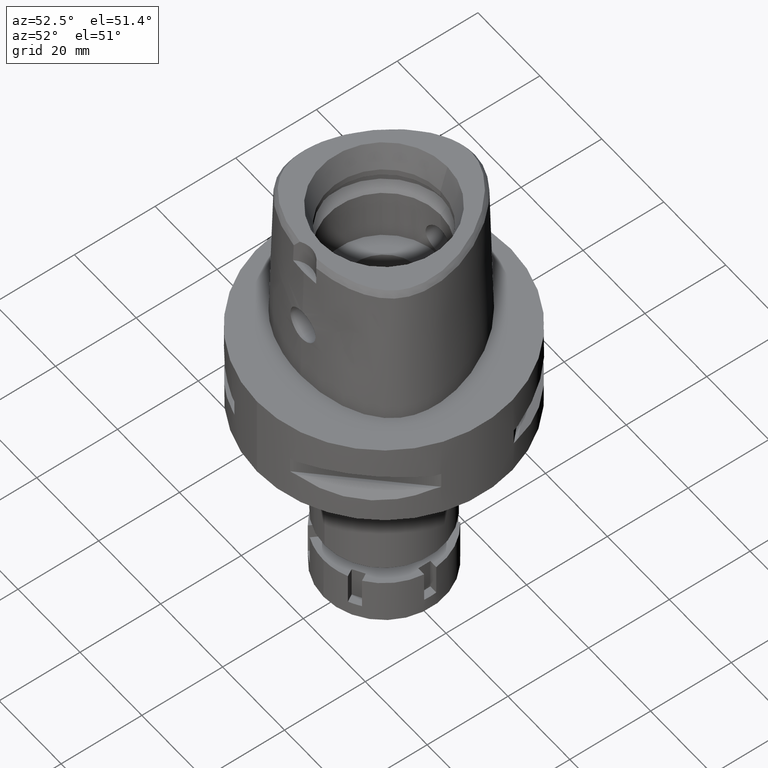
[diagram: clean part render]
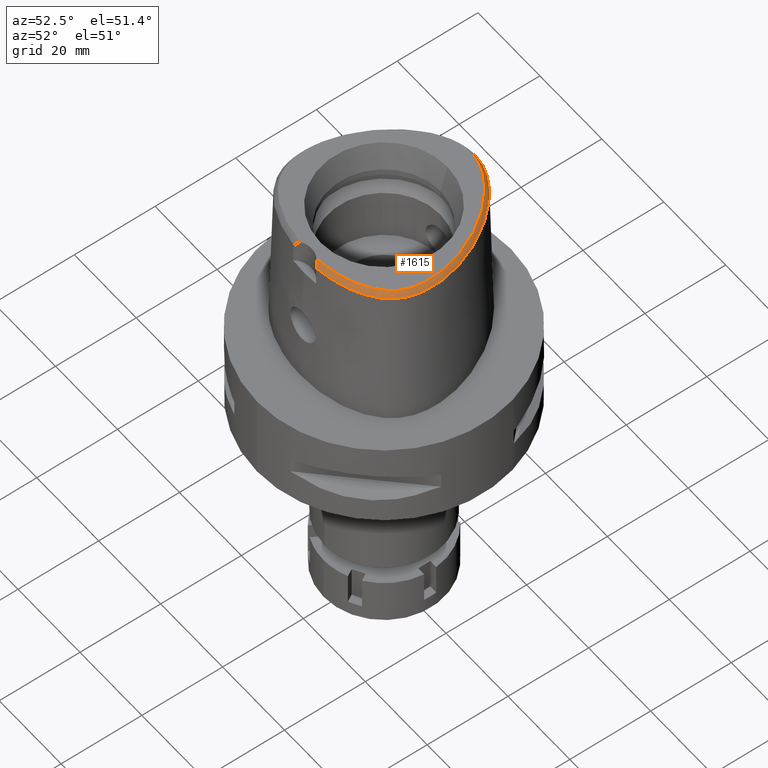
[diagram: same view with one face highlighted and labeled with its STEP entity id]
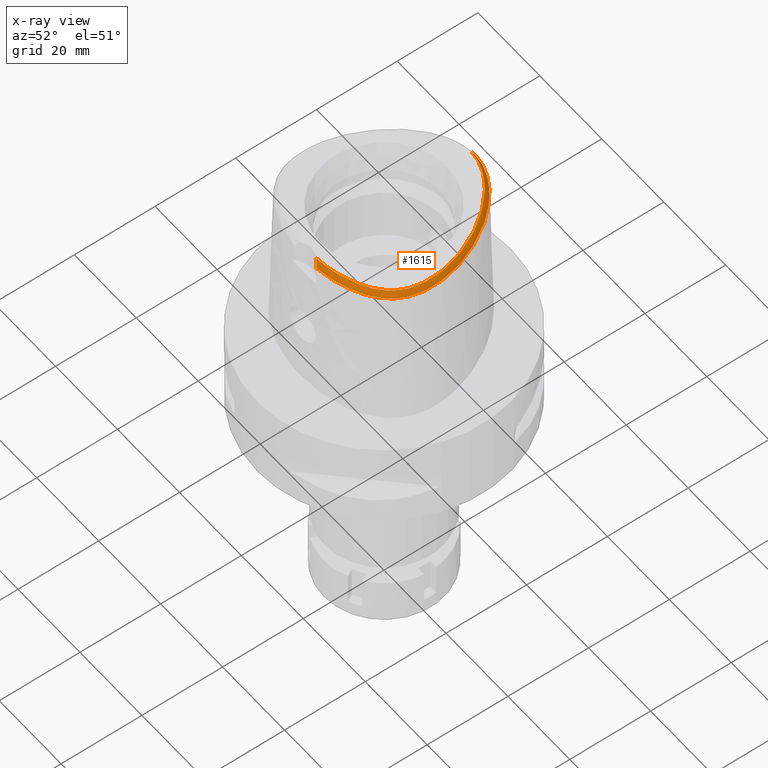
[diagram: x-ray of the same camera — body ghosted, the highlighted face saturated]
A machine part, auxiliary view. The second image highlights one B-rep face of the part: STEP entity #1615.
The next image is the same camera in x-ray: the body ghosted, the highlighted face saturated — about 0% of this face is hidden behind the body in this view.
In plain terms, the highlighted face is a freeform B-spline surface patch.
Its self-contained STEP definition (entity closure, byte-faithful):
#9 = CARTESIAN_POINT ( 'NONE',  ( 7.801698002855999903, 19.31334623104000059, 37.55524310702000435 ) ) ;
#13 = CARTESIAN_POINT ( 'NONE',  ( 19.94150023627672752, 0.2261566111945942925, 37.99999999999957367 ) ) ;
#34 = CARTESIAN_POINT ( 'NONE',  ( 3.666378257587000089, 21.71825640634000010, 36.96658037082000448 ) ) ;
#43 = CARTESIAN_POINT ( 'NONE',  ( 16.93855157777929321, -13.22377441789303276, 37.99999999999421618 ) ) ;
#54 = CARTESIAN_POINT ( 'NONE',  ( 20.36831626393000150, -8.720400245107001069, 36.96658006665999352 ) ) ;
#73 = CARTESIAN_POINT ( 'NONE',  ( 16.09765529146957519, 9.909410920133010947, 37.99999999999318590 ) ) ;
#84 = CARTESIAN_POINT ( 'NONE',  ( 20.97471890655000237, -5.315891943738000336, 36.96658071245000343 ) ) ;
#102 = CARTESIAN_POINT ( 'NONE',  ( 20.38292172607752661, -3.276278498261558703, 37.99999999999219824 ) ) ;
#110 = CARTESIAN_POINT ( 'NONE',  ( 14.83671133498999950, 12.91029954314000072, 36.96658053822999790 ) ) ;
#126 = CARTESIAN_POINT ( 'NONE',  ( 20.09619608769149934, -10.23243839430103463, 36.52186680739937685 ) ) ;
#136 = CARTESIAN_POINT ( 'NONE',  ( 16.32357122635000124, 10.04463811157000031, 37.55524310103000829 ) ) ;
#165 = CARTESIAN_POINT ( 'NONE',  ( 21.34232043503999776, -3.233006384124000210, 36.37791703637000040 ) ) ;
#179 = CARTESIAN_POINT ( 'NONE',  ( 4.752906417306999920, -18.82661743818000133, 37.55524310192000570 ) ) ;
#190 = CARTESIAN_POINT ( 'NONE',  ( 12.63741399752000127, 15.06682391710000068, 37.55524333337999821 ) ) ;
#205 = CARTESIAN_POINT ( 'NONE',  ( 11.55631002590999934, -17.37146342691999834, 36.96657991700999446 ) ) ;
#237 = CARTESIAN_POINT ( 'NONE',  ( 3.520338765888999966, -18.62276927085999745, 38.14390603046999928 ) ) ;
#239 = VERTEX_POINT ( 'NONE', #1969 ) ;
#265 = FACE_OUTER_BOUND ( 'NONE', #377, .T. ) ;
#274 = CARTESIAN_POINT ( 'NONE',  ( 3.771297800523000010, 22.05064991511000017, 36.37791752201999884 ) ) ;
#290 = CARTESIAN_POINT ( 'NONE',  ( 16.76715658088000183, -14.22166181368000082, 36.96657996121999901 ) ) ;
#297 = CARTESIAN_POINT ( 'NONE',  ( 0.02371701229406000117, 22.30536050430000117, 36.96658029041999782 ) ) ;
#311 = CARTESIAN_POINT ( 'NONE',  ( 16.09777605482999974, -14.77812208666000160, 36.96658017062000567 ) ) ;
#326 = CARTESIAN_POINT ( 'NONE',  ( -0.6386497150734999906, 22.28134143924999933, 36.96657976104999932 ) ) ;
#341 = CARTESIAN_POINT ( 'NONE',  ( 14.71672907411000075, -16.16104494572000050, 36.37791756425000500 ) ) ;
#350 = CARTESIAN_POINT ( 'NONE',  ( 5.166974690248000712, 20.77428923412999850, 37.55524323134999776 ) ) ;
#365 = CARTESIAN_POINT ( 'NONE',  ( 19.84750713672000089, -10.91267173702000015, 36.37791678021999786 ) ) ;
#377 = EDGE_LOOP ( 'NONE', ( #1587, #4520, #1749, #2858 ) ) ;
#387 = CARTESIAN_POINT ( 'NONE',  ( 17.64933743684999712, -12.85715827263999955, 37.55524311151000205 ) ) ;
#400 = CARTESIAN_POINT ( 'NONE',  ( 0.6513209347956055995, 21.67370899611767499, 38.00000000000257927 ) ) ;
#424 = CARTESIAN_POINT ( 'NONE',  ( 16.36283630828623359, -13.76236604534801344, 37.99999999999828049 ) ) ;
#443 = CARTESIAN_POINT ( 'NONE',  ( 4.349446923920999630, 21.11225867646000154, 37.55524308841000192 ) ) ;
#448 = CARTESIAN_POINT ( 'NONE',  ( 10.48999540690944343, 16.86597469870150690, 37.99999999999842260 ) ) ;
#476 = CARTESIAN_POINT ( 'NONE',  ( 2.376843874103949261, 22.39422497744250506, 36.52186680739937685 ) ) ;
#487 = CARTESIAN_POINT ( 'NONE',  ( 20.62690666197999789, -5.293387998809999218, 37.55524336665999385 ) ) ;
#509 = CARTESIAN_POINT ( 'NONE',  ( 12.37622418510252764, -16.33871033285808849, 37.99999999999675282 ) ) ;
#515 = CARTESIAN_POINT ( 'NONE',  ( 18.15599187664000169, 7.363121477870000042, 36.96658073543000000 ) ) ;
#534 = CARTESIAN_POINT ( 'NONE',  ( 19.26272899268314731, 2.870227893749603520, 37.99999999999705835 ) ) ;
#542 = CARTESIAN_POINT ( 'NONE',  ( 21.36097493632999900, -4.318188675165998802, 36.37791723528000176 ) ) ;
#554 = CARTESIAN_POINT ( 'NONE',  ( 3.593747101923999931, -19.31573022036000253, 36.96658064345999861 ) ) ;
#571 = CARTESIAN_POINT ( 'NONE',  ( 15.11746531688000061, 13.11675050028000022, 36.37791778478000282 ) ) ;
#588 = CARTESIAN_POINT ( 'NONE',  ( 2.636407847501999857, -18.70010190962999985, 38.14390602040000289 ) ) ;
#596 = CARTESIAN_POINT ( 'NONE',  ( -1.479175875384000228E-11, 22.56201468012000078, 36.52186680743999858 ) ) ;
#603 = CARTESIAN_POINT ( 'NONE',  ( 16.81091519447000238, 8.478458599486000224, 38.14390607450000203 ) ) ;
#620 = CARTESIAN_POINT ( 'NONE',  ( 11.29098262437999978, -16.72690921951999954, 38.14390613161999966 ) ) ;
#627 = CARTESIAN_POINT ( 'NONE',  ( 18.90964962507782587, -12.28759713487286298, 36.52186680739937685 ) ) ;
#634 = CARTESIAN_POINT ( 'NONE',  ( 11.90112515808000104, 16.35712680165999799, 36.96658249310000599 ) ) ;
#647 = CARTESIAN_POINT ( 'NONE',  ( 8.912659947084000223, -17.56629835404999795, 38.14390574024000102 ) ) ;
#679 = CARTESIAN_POINT ( 'NONE',  ( 2.088261414990999931, -19.08628028756999839, 37.55524333974999962 ) ) ;
#688 = CARTESIAN_POINT ( 'NONE',  ( 5.855324703515999651, 20.05619330945000200, 38.14390605247999844 ) ) ;
#707 = CARTESIAN_POINT ( 'NONE',  ( 20.75341542433000086, -7.131014075746000103, 36.96657996687000036 ) ) ;
#709 = B_SPLINE_CURVE_WITH_KNOTS ( 'NONE', 3,
 ( #4712, #939, #2196, #3885, #1000, #5209 ),
 .UNSPECIFIED., .F., .F.,
 ( 4, 1, 1, 4 ),
 ( 0.0000000000000000000, 0.3333333333333000081, 0.6666666666667000474, 1.000000000000000000 ),
 .UNSPECIFIED. ) ;
#718 = CARTESIAN_POINT ( 'NONE',  ( 2.886157767456999590, 21.93872577574000360, 36.96658045339000154 ) ) ;
#731 = CARTESIAN_POINT ( 'NONE',  ( 17.90911897010999709, -13.08956941439000055, 36.96658011960000323 ) ) ;
#741 = CARTESIAN_POINT ( 'NONE',  ( -0.4341140771878000404, 22.64110720476000083, 36.37791705949000232 ) ) ;
#756 = CARTESIAN_POINT ( 'NONE',  ( 20.16404385799000210, -10.25891233043000028, 36.37791725924000019 ) ) ;
#767 = CARTESIAN_POINT ( 'NONE',  ( 5.452137112547999820, 21.41038348175999673, 36.37791756477000149 ) ) ;
#784 = CARTESIAN_POINT ( 'NONE',  ( 18.92066629922999610, -10.42833253256000070, 38.14390613423999810 ) ) ;
#813 = CARTESIAN_POINT ( 'NONE',  ( 20.03503703266000002, -8.618298166748999733, 37.55524308871999750 ) ) ;
#848 = CARTESIAN_POINT ( 'NONE',  ( 2.845098933833551946, -18.76733062686122011, 37.99999999999900524 ) ) ;
#871 = CARTESIAN_POINT ( 'NONE',  ( 0.6897469307455998955, 22.28445470859000110, 36.96657992981000262 ) ) ;
#905 = CARTESIAN_POINT ( 'NONE',  ( 0.7901461619530943947, 22.56201467849317410, 36.52186680739937685 ) ) ;
#913 = CARTESIAN_POINT ( 'NONE',  ( 15.46589690768999859, 11.40337226012000116, 37.55524336871000202 ) ) ;
#931 = CARTESIAN_POINT ( 'NONE',  ( 13.40430406168420951, 13.76274261013123912, 37.99999999999948130 ) ) ;
#939 = CARTESIAN_POINT ( 'NONE',  ( 3.538185661162999818, -19.46414103320000066, 36.71708066496000100 ) ) ;
#942 = CARTESIAN_POINT ( 'NONE',  ( 15.75612637152999973, 11.59627258669000049, 36.96658071723999939 ) ) ;
#967 = CARTESIAN_POINT ( 'NONE',  ( 3.529311563348807024, -18.70747079909795829, 38.00000000000133582 ) ) ;
#975 = CARTESIAN_POINT ( 'NONE',  ( 18.80662003324999887, 5.909236943728999769, 36.96658029366000164 ) ) ;
#1000 = CARTESIAN_POINT ( 'NONE',  ( 2.793200680326000107, -18.85086725872000102, 37.86628574653000356 ) ) ;
#1002 = CARTESIAN_POINT ( 'NONE',  ( 20.64597806672999880, -3.264413771020000077, 37.55524308646999998 ) ) ;
#1015 = CARTESIAN_POINT ( 'NONE',  ( 3.630451269942000181, -19.66221069510000063, 36.37791794996000050 ) ) ;
#1032 = CARTESIAN_POINT ( 'NONE',  ( 17.52683439366999707, 7.063227167177000609, 38.14390601765999378 ) ) ;
#1048 = CARTESIAN_POINT ( 'NONE',  ( 10.49698533052000116, -18.14989199300999800, 36.37791962889000530 ) ) ;
#1063 = CARTESIAN_POINT ( 'NONE',  ( 13.60872940890000038, 13.92868398933000051, 37.55524295656999811 ) ) ;
#1132 = CARTESIAN_POINT ( 'NONE',  ( 15.15647042500000019, -15.04017115717000053, 37.55524335874000030 ) ) ;
#1140 = CARTESIAN_POINT ( 'NONE',  ( 10.43243981078999916, 16.80315946532000382, 38.14390575550999785 ) ) ;
#1141 = CARTESIAN_POINT ( 'NONE',  ( 3.482188079160005501, 21.13472718027242436, 37.99999999999629097 ) ) ;
#1154 = CARTESIAN_POINT ( 'NONE',  ( 13.79633483645999803, -16.69357713235000062, 36.37791700502999959 ) ) ;
#1161 = CARTESIAN_POINT ( 'NONE',  ( -0.4077991261730000150, 21.94477004746999782, 37.55524309281000228 ) ) ;
#1174 = CARTESIAN_POINT ( 'NONE',  ( 19.84567822821999883, -10.11695991228000224, 36.96658020341000395 ) ) ;
#1185 = CARTESIAN_POINT ( 'NONE',  ( 6.175722474502999937, 20.67527161806999914, 36.96658048537000241 ) ) ;
#1202 = CARTESIAN_POINT ( 'NONE',  ( 18.66518255216000099, -12.73138998213000050, 36.37791767433999723 ) ) ;
#1215 = CARTESIAN_POINT ( 'NONE',  ( 1.325020189552857497, 21.61081414409553147, 37.99999999999233324 ) ) ;
#1227 = CARTESIAN_POINT ( 'NONE',  ( 18.53512528929999803, -11.73623064585999920, 37.55524301638000395 ) ) ;
#1259 = CARTESIAN_POINT ( 'NONE',  ( 13.33890749495663108, -15.84912955619333097, 37.99999999999040057 ) ) ;
#1278 = CARTESIAN_POINT ( 'NONE',  ( 10.13690234144999991, 18.44517858651999731, 36.37791859338999956 ) ) ;
#1286 = CARTESIAN_POINT ( 'NONE',  ( 7.655962789343619512, 19.09402979099361986, 37.99999999999932498 ) ) ;
#1307 = CARTESIAN_POINT ( 'NONE',  ( 1.444542054924000007, 22.56386789761000244, 36.37791648778999587 ) ) ;
#1315 = CARTESIAN_POINT ( 'NONE',  ( -1.479175875384000228E-11, 22.56201468012000078, 36.52186680743999858 ) ) ;
#1322 = CARTESIAN_POINT ( 'NONE',  ( 21.01245723557999767, -4.314975611754999107, 36.96658018814000002 ) ) ;
#1338 = CARTESIAN_POINT ( 'NONE',  ( 7.108589361577370980, 20.52412316395115610, 36.52186680739937685 ) ) ;
#1346 = CARTESIAN_POINT ( 'NONE',  ( 20.99414925089000050, -3.248710077571999921, 36.96658006141999664 ) ) ;
#1370 = CARTESIAN_POINT ( 'NONE',  ( 17.27359236348664595, 9.972912859139471564, 36.52186680739937685 ) ) ;
#1381 = CARTESIAN_POINT ( 'NONE',  ( 19.18135649123999897, 2.844996931117999672, 38.14390592584999951 ) ) ;
#1400 = CARTESIAN_POINT ( 'NONE',  ( 16.39211273426271731, -14.95758104716204606, 36.52186680739937685 ) ) ;
#1409 = CARTESIAN_POINT ( 'NONE',  ( 20.56683407424999999, -2.149534130283000444, 37.55524297560000235 ) ) ;
#1428 = CARTESIAN_POINT ( 'NONE',  ( 4.467522181836567796, -19.48130276147530537, 36.52186680739937685 ) ) ;
#1436 = CARTESIAN_POINT ( 'NONE',  ( 20.42017408908999698, -0.9682881612971999674, 37.55524323640999995 ) ) ;
#1451 = CARTESIAN_POINT ( 'NONE',  ( 9.111132730794000878, -18.23444843466000265, 36.96658272760999608 ) ) ;
#1456 = CARTESIAN_POINT ( 'NONE',  ( 7.300578979383509193, -19.07170738131085841, 36.52186680739937685 ) ) ;
#1468 = CARTESIAN_POINT ( 'NONE',  ( 12.89703909740000043, 15.29929730045000014, 36.96658063513000059 ) ) ;
#1483 = CARTESIAN_POINT ( 'NONE',  ( 2.317503385888000089, -19.42116977889999774, 36.96658068328999747 ) ) ;
#1514 = CARTESIAN_POINT ( 'NONE',  ( 10.26511113853000090, -17.49257508748999967, 37.55524379730999840 ) ) ;
#1535 = CARTESIAN_POINT ( 'NONE',  ( 2.293952720325999728, -19.07360247599999781, 37.55524335409999992 ) ) ;
#1544 = CARTESIAN_POINT ( 'NONE',  ( 9.151801237275998702, 19.21681056661000042, 36.37791654698000343 ) ) ;
#1564 = CARTESIAN_POINT ( 'NONE',  ( 15.66829049108999961, -14.22904134146000033, 38.14390609630999762 ) ) ;
#1574 = CARTESIAN_POINT ( 'NONE',  ( 7.247958680112000174, 20.48140100142999742, 36.37791707472000269 ) ) ;
#1587 = ORIENTED_EDGE ( 'NONE', *, *, #2825, .F. ) ;
#1590 = CARTESIAN_POINT ( 'NONE',  ( 19.10766131086999664, -12.13401992807999896, 36.37791678074999879 ) ) ;
#1600 = CARTESIAN_POINT ( 'NONE',  ( 4.473578287533000797, 21.43795797084000299, 36.96658006594000057 ) ) ;
#1614 = CARTESIAN_POINT ( 'NONE',  ( 17.84480187205999968, -12.08291092895000141, 38.14390605491999509 ) ) ;
#1615 = ADVANCED_FACE ( 'NONE', ( #265 ), #4681, .F. ) ;
#1637 = CARTESIAN_POINT ( 'NONE',  ( 20.57941429779000231, -7.951869817099000315, 36.96658000130999966 ) ) ;
#1672 = CARTESIAN_POINT ( 'NONE',  ( 20.30478359881946560, -2.175347700950746699, 37.99999999999749889 ) ) ;
#1690 = CARTESIAN_POINT ( 'NONE',  ( 8.187476971243999202, 19.89390372262000284, 36.37791711131999506 ) ) ;
#1695 = CARTESIAN_POINT ( 'NONE',  ( 17.60373714028083825, 7.099883643193164673, 37.99999999999874234 ) ) ;
#1713 = CARTESIAN_POINT ( 'NONE',  ( 2.716152754389999924, 21.26264062318999848, 38.14390605692999969 ) ) ;
#1720 = VECTOR ( 'NONE', #2311, 1000.000000000000227 ) ;
#1724 = CARTESIAN_POINT ( 'NONE',  ( 9.524842839488357527, 17.70516372195135091, 38.00000000000355982 ) ) ;
#1733 = CARTESIAN_POINT ( 'NONE',  ( 16.02455764480000155, 9.865656638413000223, 38.14390610679999583 ) ) ;
#1749 = ORIENTED_EDGE ( 'NONE', *, *, #2810, .T. ) ;
#1752 = CARTESIAN_POINT ( 'NONE',  ( 18.24247239569877976, 5.672548708071968981, 37.99999999999990763 ) ) ;
#1760 = CARTESIAN_POINT ( 'NONE',  ( 21.32253115111000241, -5.338395888666000566, 36.37791805825000324 ) ) ;
#1779 = CARTESIAN_POINT ( 'NONE',  ( 20.36412151360895351, -5.276385427454140853, 37.99999999999872102 ) ) ;
#1786 = CARTESIAN_POINT ( 'NONE',  ( 18.48526678420000025, 5.774413134362000655, 37.55524318642000736 ) ) ;
#1808 = CARTESIAN_POINT ( 'NONE',  ( 14.22011350746286062, -16.41829354688557530, 36.52186680739937685 ) ) ;
#1819 = CARTESIAN_POINT ( 'NONE',  ( 21.26051379407000397, -2.081202445559999781, 36.37791663201999626 ) ) ;
#1835 = CARTESIAN_POINT ( 'NONE',  ( 10.38104823452000147, -17.82123354024999884, 36.96658171309999830 ) ) ;
#1850 = CARTESIAN_POINT ( 'NONE',  ( 20.88664216568000143, -6.253788544013000106, 36.96658037486999859 ) ) ;
#1874 = CARTESIAN_POINT ( 'NONE',  ( 13.15666419727999958, 15.53177068379999959, 36.37791793688000297 ) ) ;
#1888 = CARTESIAN_POINT ( 'NONE',  ( 11.68897372666999956, -17.69374053062000129, 36.37791680969999675 ) ) ;
#1919 = CARTESIAN_POINT ( 'NONE',  ( 12.63846265627999976, -16.89150352318999992, 36.96657996810999691 ) ) ;
#1926 = CARTESIAN_POINT ( 'NONE',  ( 17.90324024157311911, -13.53935104435961101, 36.52186680739937685 ) ) ;
#1948 = CARTESIAN_POINT ( 'NONE',  ( 9.210369122650000406, -18.56852347496000277, 36.37792122130000649 ) ) ;
#1957 = CARTESIAN_POINT ( 'NONE',  ( 7.608808518661999365, 19.02306748524999591, 38.14390610486999833 ) ) ;
#1969 = CARTESIAN_POINT ( 'NONE',  ( 2.682287482605000051, -18.78036330228999873, 38.00000000000000000 ) ) ;
#1971 = CARTESIAN_POINT ( 'NONE',  ( 17.36928981519000104, -13.65840856075000076, 36.96658002605000348 ) ) ;
#1978 = CARTESIAN_POINT ( 'NONE',  ( 0.02437359039957999809, 22.65392711312000174, 36.37791739581999906 ) ) ;
#1998 = CARTESIAN_POINT ( 'NONE',  ( 18.16890050337000062, -13.32198055615000065, 36.37791712768999730 ) ) ;
#2006 = CARTESIAN_POINT ( 'NONE',  ( 8.735945417806000535, 18.65741905980999960, 37.55524295228000398 ) ) ;
#2021 = CARTESIAN_POINT ( 'NONE',  ( 16.53684517902999929, -13.96003493163000009, 37.55524304334999641 ) ) ;
#2029 = CARTESIAN_POINT ( 'NONE',  ( 1.314416584636999952, 21.52626220512999922, 38.14390616018000202 ) ) ;
#2043 = CARTESIAN_POINT ( 'NONE',  ( 19.90186731433000489, -7.787824919521000311, 38.14390611988999780 ) ) ;
#2072 = CARTESIAN_POINT ( 'NONE',  ( 20.91818778952000102, -8.033892265887999429, 36.37791694202000059 ) ) ;
#2108 = CARTESIAN_POINT ( 'NONE',  ( 20.27923816685981251, -6.179850483268406691, 37.99999999999874944 ) ) ;
#2128 = CARTESIAN_POINT ( 'NONE',  ( 9.470542840707999233, 17.63951192484000075, 38.14390597338999811 ) ) ;
#2133 = CARTESIAN_POINT ( 'NONE',  ( 19.78323211893007283, -8.541156231035980539, 37.99999999999089084 ) ) ;
#2172 = CARTESIAN_POINT ( 'NONE',  ( 20.23644778447999926, 1.674257468848000086, 36.96658277795000203 ) ) ;
#2190 = CARTESIAN_POINT ( 'NONE',  ( 19.64387775268451719, 1.522048414458460508, 37.99999999999386802 ) ) ;
#2196 = CARTESIAN_POINT ( 'NONE',  ( 3.333185480263000322, -19.26518368270999915, 37.08692409105999843 ) ) ;
#2198 = CARTESIAN_POINT ( 'NONE',  ( 16.04635583537999821, 11.78917291325999983, 36.37791806576000653 ) ) ;
#2216 = CARTESIAN_POINT ( 'NONE',  ( 11.46587147800001105, 15.92717600803375610, 37.99999999999735678 ) ) ;
#2225 = CARTESIAN_POINT ( 'NONE',  ( 17.42519684434000027, 8.807749168099999082, 36.96658032724000265 ) ) ;
#2238 = CARTESIAN_POINT ( 'NONE',  ( 6.180367822565000502, -18.23308212698999853, 38.14390612298999628 ) ) ;
#2260 = CARTESIAN_POINT ( 'NONE',  ( 20.54064896193000322, -6.211671490838999610, 37.55524322136999871 ) ) ;
#2274 = CARTESIAN_POINT ( 'NONE',  ( 7.669231052224000145, -18.26408014319999751, 37.55524390731000040 ) ) ;
#2291 = CARTESIAN_POINT ( 'NONE',  ( 17.11805601941000177, 8.643103883792999653, 37.55524320086999523 ) ) ;
#2305 = CARTESIAN_POINT ( 'NONE',  ( 11.42364632513999823, -17.04918632321999894, 37.55524302431000194 ) ) ;
#2311 = DIRECTION ( 'NONE',  ( -1.159647928755014891E-11, -0.5092834681090075977, 0.8605988316927122295 ) ) ;
#2316 = CARTESIAN_POINT ( 'NONE',  ( 12.14905703786000046, 16.60203801863000095, 36.37792085319999558 ) ) ;
#2330 = VERTEX_POINT ( 'NONE', #5067 ) ;
#2332 = CARTESIAN_POINT ( 'NONE',  ( 12.33970687276000078, -16.26173260528999975, 38.14390612450999640 ) ) ;
#2364 = CARTESIAN_POINT ( 'NONE',  ( 2.663788824065000060, -19.04739795081999887, 37.55524336807999930 ) ) ;
#2368 = CARTESIAN_POINT ( 'NONE',  ( 21.14970177531298745, -6.717195943319144824, 36.52186680739937685 ) ) ;
#2372 = CARTESIAN_POINT ( 'NONE',  ( 7.994587487050000441, 19.60362497682999816, 36.96658010916999615 ) ) ;
#2389 = CARTESIAN_POINT ( 'NONE',  ( 21.09641232389000010, -7.193009693891000644, 36.37791688797000234 ) ) ;
#2396 = EDGE_CURVE ( 'NONE', #4781, #239, #709, .T. ) ;
#2397 = CARTESIAN_POINT ( 'NONE',  ( 0.02240385608303000278, 21.60822728664999914, 38.14390607962999269 ) ) ;
#2411 = CARTESIAN_POINT ( 'NONE',  ( 16.31251883671000158, -15.05266245926000046, 36.37791720776999682 ) ) ;
#2419 = CARTESIAN_POINT ( 'NONE',  ( 2.971160273989999823, 22.27676835201999950, 36.37791765160999802 ) ) ;
#2438 = CARTESIAN_POINT ( 'NONE',  ( 20.24064080606000005, -7.869847368309999425, 37.55524306059999873 ) ) ;
#2446 = CARTESIAN_POINT ( 'NONE',  ( -0.5994056185823001259, 21.58577258329999893, 38.14390615333999790 ) ) ;
#2463 = CARTESIAN_POINT ( 'NONE',  ( 14.53422131294999886, -15.86411481486999975, 36.96658039772999871 ) ) ;
#2488 = CARTESIAN_POINT ( 'NONE',  ( 20.06742162519000416, -7.007022839456999996, 38.14390612468999819 ) ) ;
#2499 = CARTESIAN_POINT ( 'NONE',  ( 2.736932690727253092, 21.34527940057069628, 37.99999999999355538 ) ) ;
#2529 = CARTESIAN_POINT ( 'NONE',  ( 18.79595068776344746, 4.257753965101831461, 37.99999999999661071 ) ) ;
#2550 = CARTESIAN_POINT ( 'NONE',  ( 6.335921359996000035, 20.98481077239000214, 36.37791770180999151 ) ) ;
#2556 = CARTESIAN_POINT ( 'NONE',  ( 16.88599964843636414, 8.518708218769839746, 37.99999999999647571 ) ) ;
#2580 = CARTESIAN_POINT ( 'NONE',  ( 8.936919536467794245, -17.64796721715127603, 37.99999999999494094 ) ) ;
#2589 = CARTESIAN_POINT ( 'NONE',  ( 20.07559210249000259, -1.020480503251999904, 38.14390606301000020 ) ) ;
#2612 = CARTESIAN_POINT ( 'NONE',  ( 6.760281394351118855, 19.65404668909436836, 37.99999999999286615 ) ) ;
#2619 = CARTESIAN_POINT ( 'NONE',  ( 20.27909441741999785, -5.270884053882999964, 38.14390602086000115 ) ) ;
#2640 = CARTESIAN_POINT ( 'NONE',  ( 19.88562079788676229, 4.345879946636430624, 36.52186680739937685 ) ) ;
#2646 = CARTESIAN_POINT ( 'NONE',  ( 20.76475607569000204, -0.9160958193420000173, 36.96658040980999971 ) ) ;
#2672 = CARTESIAN_POINT ( 'NONE',  ( 18.71590074100999956, 4.228600144935000138, 38.14390616269999867 ) ) ;
#2683 = CARTESIAN_POINT ( 'NONE',  ( 4.802315409589999362, -19.17158814024000080, 36.96658009732999517 ) ) ;
#2693 = CARTESIAN_POINT ( 'NONE',  ( 19.55745538001455586, -11.29150212657858887, 36.52186680739937685 ) ) ;
#2702 = CARTESIAN_POINT ( 'NONE',  ( 17.84141313516000338, 7.213174322522999837, 37.55524337655000267 ) ) ;
#2739 = CARTESIAN_POINT ( 'NONE',  ( 13.87929888095000130, 14.14831757184000161, 36.96657975959000453 ) ) ;
#2760 = CARTESIAN_POINT ( 'NONE',  ( 21.32871516739957585, -4.105831245033910726, 36.52186680739937685 ) ) ;
#2809 = CARTESIAN_POINT ( 'NONE',  ( 16.30653377718000030, -13.69840804958000113, 38.14390612547000359 ) ) ;
#2810 = EDGE_CURVE ( 'NONE', #2330, #239, #3331, .T. ) ;
#2818 = CARTESIAN_POINT ( 'NONE',  ( 9.914782507871001016, 18.17662303262999757, 36.96658105339000144 ) ) ;
#2819 = CARTESIAN_POINT ( 'NONE',  ( 4.255661039972895132, 20.86618068830196648, 37.99999999999066347 ) ) ;
#2825 = EDGE_CURVE ( 'NONE', #2934, #4781, #3992, .T. ) ;
#2833 = CARTESIAN_POINT ( 'NONE',  ( 15.35524722732999869, -15.32647393705000027, 36.96658069407000369 ) ) ;
#2841 = CARTESIAN_POINT ( 'NONE',  ( 8.943873327541000506, 18.93711481321000178, 36.96657974963000015 ) ) ;
#2855 = CARTESIAN_POINT ( 'NONE',  ( 19.70175780140000299, -8.516196088392000263, 38.14390611078000148 ) ) ;
#2858 = ORIENTED_EDGE ( 'NONE', *, *, #2396, .F. ) ;
#2866 = CARTESIAN_POINT ( 'NONE',  ( 3.456539171714000158, 21.05346938878999907, 38.14390606842999887 ) ) ;
#2886 = CARTESIAN_POINT ( 'NONE',  ( 14.35171355179000052, -15.56718468402000077, 37.55524323120999952 ) ) ;
#2909 = CARTESIAN_POINT ( 'NONE',  ( 19.20894696869000029, -9.833055075973000214, 38.14390609173999280 ) ) ;
#2934 = VERTEX_POINT ( 'NONE', #3524 ) ;
#2941 = CARTESIAN_POINT ( 'NONE',  ( 15.00628712263687170, -14.82385870794889549, 37.99999999998939160 ) ) ;
#2966 = CARTESIAN_POINT ( 'NONE',  ( 8.528017508071000563, 18.37772330641000096, 38.14390615493000070 ) ) ;
#2981 = CARTESIAN_POINT ( 'NONE',  ( 3.637738219117000238, -19.56971420299000286, 36.52185956443999970 ) ) ;
#2993 = CARTESIAN_POINT ( 'NONE',  ( 6.893997023746999631, 19.88089794059999704, 37.55524309697999996 ) ) ;
#3000 = CARTESIAN_POINT ( 'NONE',  ( 17.45306278053880789, -12.68156296993534049, 38.00000000000143530 ) ) ;
#3007 = CARTESIAN_POINT ( 'NONE',  ( 16.62258480790000092, 10.22361958472999888, 36.96658009525999944 ) ) ;
#3025 = CARTESIAN_POINT ( 'NONE',  ( 10.15538781006686442, 18.47129526703259472, 36.52186680739937685 ) ) ;
#3034 = CARTESIAN_POINT ( 'NONE',  ( 19.12797328229999749, 6.044060753095999772, 36.37791740090000303 ) ) ;
#3056 = CARTESIAN_POINT ( 'NONE',  ( 12.44125753246551014, 14.89118158853283980, 38.00000000000032685 ) ) ;
#3065 = CARTESIAN_POINT ( 'NONE',  ( 20.91367393415999842, -2.115368287920999624, 36.96657980381000641 ) ) ;
#3096 = CARTESIAN_POINT ( 'NONE',  ( 16.92159838945000061, 10.40260105788999923, 36.37791708949000480 ) ) ;
#3115 = CARTESIAN_POINT ( 'NONE',  ( 3.637738219117000238, -19.56971420299000286, 36.52185956443999970 ) ) ;
#3124 = CARTESIAN_POINT ( 'NONE',  ( 20.54095638892999887, 0.3485094756005999717, 36.96658230303999915 ) ) ;
#3136 = CARTESIAN_POINT ( 'NONE',  ( 10.14917404254000033, -17.16391663471999962, 38.14390588151000117 ) ) ;
#3156 = CARTESIAN_POINT ( 'NONE',  ( 11.40526139850999954, 15.86730436772000274, 38.14390577289999840 ) ) ;
#3171 = CARTESIAN_POINT ( 'NONE',  ( 2.718550777189999934, -19.74199003320000045, 36.37791806343000189 ) ) ;
#3196 = CARTESIAN_POINT ( 'NONE',  ( 2.270402054763000166, -18.72603517309000054, 38.14390602491999260 ) ) ;
#3219 = CARTESIAN_POINT ( 'NONE',  ( 19.49870361940000407, -11.53155093482999938, 36.37791726922999658 ) ) ;
#3228 = CARTESIAN_POINT ( 'NONE',  ( 4.225315560310000329, 20.78655938208000009, 38.14390611087999616 ) ) ;
#3246 = CARTESIAN_POINT ( 'NONE',  ( 15.88303327295999878, -14.50358171406000096, 37.55524313346000298 ) ) ;
#3255 = CARTESIAN_POINT ( 'NONE',  ( 11.13875139747000098, 17.57401634370000210, 36.37792104923000380 ) ) ;
#3269 = CARTESIAN_POINT ( 'NONE',  ( 18.90246818273000073, -11.17022068538999946, 37.55524315032000260 ) ) ;
#3277 = CARTESIAN_POINT ( 'NONE',  ( 0.7116353830284000148, 22.63235143984999809, 36.37791682977999841 ) ) ;
#3291 = CARTESIAN_POINT ( 'NONE',  ( 13.63033188308000021, -16.38712236042000114, 36.96658004145000120 ) ) ;
#3301 = CARTESIAN_POINT ( 'NONE',  ( -3.470944899521999539E-11, 21.68728795390000030, 38.00000000000000000 ) ) ;
#3323 = CARTESIAN_POINT ( 'NONE',  ( 14.95769362268000080, -14.75386837728999900, 38.14390602341000402 ) ) ;
#3331 = B_SPLINE_CURVE_WITH_KNOTS ( 'NONE', 3,
 ( #3301, #4984, #400, #1215, #5450, #2499, #1141, #2819, #4506, #4680, #2612, #1286, #4245, #1724, #448, #2216, #3056, #931, #3852, #5119, #73, #2556, #1695, #1752, #2529, #534, #2190, #13, #3905, #1672, #102, #5059, #1779, #2108, #5144, #4706, #2133, #3822, #4736, #3357, #3798, #4220, #3880, #3000, #43, #424, #5035, #2941, #4299, #1259, #509, #3411, #3382, #2580, #5092, #4267, #4626, #967, #848, #4656 ),
 .UNSPECIFIED., .F., .F.,
 ( 4, 1, 1, 1, 1, 1, 1, 1, 1, 1, 1, 1, 1, 1, 1, 1, 1, 1, 1, 1, 1, 1, 1, 1, 1, 1, 1, 1, 1, 1, 1, 1, 1, 1, 1, 1, 1, 1, 1, 1, 1, 1, 1, 1, 1, 1, 1, 1, 1, 1, 1, 1, 1, 1, 1, 1, 1, 4 ),
 ( 0.0000000000000000000, 0.01775854187129999318, 0.03551708374169992855, 0.05327562561200005486, 0.07103416748239999023, 0.08879270935270000553, 0.1065512512231000519, 0.1243097930933999562, 0.1420683349638000026, 0.1598268768341000179, 0.1775854187044000332, 0.1953439605747999686, 0.2131025024450999839, 0.2308610443155000302, 0.2486195861857999345, 0.2663781280563000120, 0.2841366699266000273, 0.3018952117970000737, 0.3196537536672999780, 0.3374122955377000244, 0.3551708374080000397, 0.3729293792782999439, 0.3906879211486999903, 0.4084464630190000056, 0.4262050048894000520, 0.4439635467596999563, 0.4617220886301000027, 0.4794806305004000180, 0.4972391723707999533, 0.5149977142410999686, 0.5327562561113999839, 0.5505147979818000303, 0.5682733398521000456, 0.5860318817224999810, 0.6037904235927999963, 0.6215489654632000427, 0.6393075073334999470, 0.6570660492038999934, 0.6748245910742000087, 0.6925831329445000240, 0.7103416748149000703, 0.7281002166851999746, 0.7458587585556000210, 0.7636173004259000363, 0.7813758422962999717, 0.7991343841665999870, 0.8168929260370000334, 0.8346514679073000487, 0.8524100097776999840, 0.8701685516479999993, 0.8879270935183000146, 0.9056856353886799660, 0.9234441772589799813, 0.9412027191293600437, 0.9589612609997000270, 0.9767198028700500023, 0.9944783447403919840, 1.000000000000000000 ),
 .UNSPECIFIED. ) ;
#3357 = CARTESIAN_POINT ( 'NONE',  ( 18.99619228226013234, -10.46780014453588414, 37.99999999999488409 ) ) ;
#3377 = CARTESIAN_POINT ( 'NONE',  ( 1.401166898162000019, 22.21799933344999900, 36.96657971192000502 ) ) ;
#3382 = CARTESIAN_POINT ( 'NONE',  ( 10.17751632998609068, -17.24426134458554927, 37.99999999999241140 ) ) ;
#3406 = CARTESIAN_POINT ( 'NONE',  ( 2.002561152961000346, 21.41882200644000278, 38.14390610970999518 ) ) ;
#3411 = CARTESIAN_POINT ( 'NONE',  ( 11.32341394162592785, -16.80569392800661532, 37.99999999999063505 ) ) ;
#3420 = CARTESIAN_POINT ( 'NONE',  ( 20.88242229164000108, 0.4182048671795000061, 36.37792055486999487 ) ) ;
#3439 = CARTESIAN_POINT ( 'NONE',  ( 4.757642236485453147, 21.67478320247260726, 36.52186680739937685 ) ) ;
#3446 = CARTESIAN_POINT ( 'NONE',  ( 20.17994471692000147, 3.154626618782999881, 36.37791912918000037 ) ) ;
#3466 = CARTESIAN_POINT ( 'NONE',  ( 13.70645019738593007, 15.04851265230236557, 36.52186680739937685 ) ) ;
#3472 = CARTESIAN_POINT ( 'NONE',  ( 20.57399117266000133, 1.760959727100000149, 36.37792130030999971 ) ) ;
#3506 = CARTESIAN_POINT ( 'NONE',  ( 20.29780688257000065, -3.280117464468999433, 38.14390611150999888 ) ) ;
#3524 = CARTESIAN_POINT ( 'NONE',  ( -1.479175875384000228E-11, 22.56201468012000078, 36.52186680743999858 ) ) ;
#3532 = CARTESIAN_POINT ( 'NONE',  ( 21.10933806227999909, -0.8639034773867000361, 36.37791758321000657 ) ) ;
#3544 = CARTESIAN_POINT ( 'NONE',  ( 2.066834271749999896, -18.73858212408000057, 38.14390602956999743 ) ) ;
#3559 = CARTESIAN_POINT ( 'NONE',  ( 14.14986835300000045, 14.36795115434000181, 36.37791656260000650 ) ) ;
#3603 = CARTESIAN_POINT ( 'NONE',  ( 12.78784054803999837, -17.20638898214000179, 36.37791688989999983 ) ) ;
#3632 = CARTESIAN_POINT ( 'NONE',  ( 2.109688558231000322, -19.43397845107000066, 36.96658064991999737 ) ) ;
#3640 = CARTESIAN_POINT ( 'NONE',  ( 2.801155260922999712, 21.60068319946000059, 37.55524325516000061 ) ) ;
#3655 = CARTESIAN_POINT ( 'NONE',  ( 19.22961324506000125, -10.58977893404999904, 37.55524301623000838 ) ) ;
#3668 = CARTESIAN_POINT ( 'NONE',  ( 2.131490683351000115, 22.10394167308999869, 36.96658007441999416 ) ) ;
#3686 = CARTESIAN_POINT ( 'NONE',  ( 18.82139330009000133, -11.93512528696999908, 36.96657989856000626 ) ) ;
#3698 = CARTESIAN_POINT ( 'NONE',  ( 5.309555901398000266, 21.09233635793999895, 36.96658039806000318 ) ) ;
#3714 = CARTESIAN_POINT ( 'NONE',  ( 18.39172232546000174, -12.51523029773000140, 36.96658046786999563 ) ) ;
#3724 = CARTESIAN_POINT ( 'NONE',  ( 10.90331420190999978, 17.31706405090000089, 36.96658261798999945 ) ) ;
#3738 = CARTESIAN_POINT ( 'NONE',  ( 17.12393004964999932, -13.41082958556999927, 37.55524307123999961 ) ) ;
#3798 = CARTESIAN_POINT ( 'NONE',  ( 18.67722910598277863, -11.03372143227971058, 37.99999999999928946 ) ) ;
#3816 = CARTESIAN_POINT ( 'NONE',  ( 4.597709651144000098, 21.76365726522000088, 36.37791704346999921 ) ) ;
#3822 = CARTESIAN_POINT ( 'NONE',  ( 19.54993126781710444, -9.226212439886026573, 38.00000000000183320 ) ) ;
#3830 = CARTESIAN_POINT ( 'NONE',  ( 18.24885727851999917, -11.53733600474000021, 38.14390613418999720 ) ) ;
#3852 = CARTESIAN_POINT ( 'NONE',  ( 14.34383722811672968, 12.54786717290759057, 37.99999999999617728 ) ) ;
#3860 = CARTESIAN_POINT ( 'NONE',  ( 19.51421923312999951, 2.948206827006000008, 37.55524366029000305 ) ) ;
#3880 = CARTESIAN_POINT ( 'NONE',  ( 17.91165267838752229, -12.13575389398136295, 37.99999999999811706 ) ) ;
#3885 = CARTESIAN_POINT ( 'NONE',  ( 3.013237129188000463, -19.00304557549000251, 37.57857835546999326 ) ) ;
#3888 = CARTESIAN_POINT ( 'NONE',  ( 14.55595735310000016, 12.70384858600999856, 37.55524329166999564 ) ) ;
#3905 = CARTESIAN_POINT ( 'NONE',  ( 20.15982952132100792, -1.007721426051241487, 38.00000000000355271 ) ) ;
#3913 = CARTESIAN_POINT ( 'NONE',  ( 19.85802458351000155, 0.2091186924427999860, 38.14390579936999615 ) ) ;
#3932 = CARTESIAN_POINT ( 'NONE',  ( 6.378289673603999788, -19.25965941843999829, 36.37791690707000214 ) ) ;
#3948 = CARTESIAN_POINT ( 'NONE',  ( 20.31542183407999858, -4.308549484934999896, 38.14390609387000097 ) ) ;
#3964 = CARTESIAN_POINT ( 'NONE',  ( 7.834389347489000066, -18.94122536361000186, 36.37792003009000297 ) ) ;
#3978 = CARTESIAN_POINT ( 'NONE',  ( 20.21999421434000155, -2.183699972643999843, 38.14390614738999830 ) ) ;
#3991 = CARTESIAN_POINT ( 'NONE',  ( 2.131115701471999913, -19.78167661456999937, 36.37791796009999956 ) ) ;
#3992 = B_SPLINE_CURVE_WITH_KNOTS ( 'NONE', 3,
 ( #1315, #905, #476, #3439, #1338, #3025, #3466, #1370, #2640, #4326, #2760, #2368, #5204, #126, #2693, #627, #1926, #1400, #1808, #5262, #1456, #1428, #3115 ),
 .UNSPECIFIED., .F., .F.,
 ( 4, 1, 1, 1, 1, 1, 1, 1, 1, 1, 1, 1, 1, 1, 1, 1, 1, 1, 1, 1, 4 ),
 ( 0.0000000000000000000, 0.04382683003322340037, 0.08765366006602592908, 0.1314804900989337832, 0.1753073201318416652, 0.2629609801974468475, 0.3506146402631573622, 0.4382683003288677659, 0.5259219603945782806, 0.5697487904274860515, 0.6135756204601834352, 0.6574024504930913171, 0.6793158655094925225, 0.7012292805259991990, 0.7231426955424004044, 0.7450561105588017208, 0.7888829405917096027, 0.8327097706245122355, 0.8765366006573148683, 0.9641902607230672384, 1.000000000000000000 ),
 .UNSPECIFIED. ) ;
#4020 = CARTESIAN_POINT ( 'NONE',  ( 12.48908476452000116, -16.57661806424000162, 37.55524304630999666 ) ) ;
#4051 = CARTESIAN_POINT ( 'NONE',  ( 7.751810199856999262, -18.60265275340000102, 36.96658196869999813 ) ) ;
#4061 = CARTESIAN_POINT ( 'NONE',  ( 5.024393479098000270, 20.45624211032000161, 38.14390606463999944 ) ) ;
#4079 = CARTESIAN_POINT ( 'NONE',  ( 18.11826209875999893, -12.29907061334000140, 37.55524326138999669 ) ) ;
#4085 = CARTESIAN_POINT ( 'NONE',  ( 0.02306043418855000318, 21.95679389547999705, 37.55524318503000103 ) ) ;
#4098 = CARTESIAN_POINT ( 'NONE',  ( 15.55402402965999897, -15.61277671693000002, 36.37791802939000263 ) ) ;
#4110 = CARTESIAN_POINT ( 'NONE',  ( -0.6190276668279000027, 21.93355701126999691, 37.55524295719000349 ) ) ;
#4128 = CARTESIAN_POINT ( 'NONE',  ( 18.60435046438999862, -10.98955556067000039, 38.14390609085999984 ) ) ;
#4139 = CARTESIAN_POINT ( 'NONE',  ( -0.6582717633190999784, 22.62912586722000086, 36.37791656491000225 ) ) ;
#4154 = CARTESIAN_POINT ( 'NONE',  ( 13.46432892969999884, -16.08066758848000077, 37.55524307787000282 ) ) ;
#4171 = EDGE_CURVE ( 'NONE', #2934, #2330, #4388, .T. ) ;
#4176 = CARTESIAN_POINT ( 'NONE',  ( 13.29832597632000102, -15.77421281655000129, 38.14390611428999733 ) ) ;
#4220 = CARTESIAN_POINT ( 'NONE',  ( 18.31883910943344063, -11.58595831187949265, 37.99999999999341327 ) ) ;
#4240 = CARTESIAN_POINT ( 'NONE',  ( 10.66787700635000036, 17.06011175810999703, 37.55524418675000931 ) ) ;
#4245 = CARTESIAN_POINT ( 'NONE',  ( 8.578848111817375610, 18.44609846599650638, 37.99999999999337774 ) ) ;
#4267 = CARTESIAN_POINT ( 'NONE',  ( 6.196495988004139477, -18.31673538864868434, 37.99999999999975842 ) ) ;
#4278 = CARTESIAN_POINT ( 'NONE',  ( 20.19949048622000021, 0.2788140840216999927, 37.55524405120000608 ) ) ;
#4299 = CARTESIAN_POINT ( 'NONE',  ( 14.21382211799069495, -15.34284287400115154, 37.99999999999390354 ) ) ;
#4307 = CARTESIAN_POINT ( 'NONE',  ( 19.04335343438999928, 4.347856900536999802, 37.55524292828000199 ) ) ;
#4326 = CARTESIAN_POINT ( 'NONE',  ( 21.07429999882370097, -0.4408303635841291923, 36.52186680739937685 ) ) ;
#4334 = CARTESIAN_POINT ( 'NONE',  ( 20.19465575816999703, -6.169554437665000002, 38.14390606786999882 ) ) ;
#4348 = CARTESIAN_POINT ( 'NONE',  ( 2.691169800627000175, -19.39469399200999788, 36.96658071574999838 ) ) ;
#4363 = CARTESIAN_POINT ( 'NONE',  ( 14.27520337121000082, 12.49739762887999817, 38.14390604511999783 ) ) ;
#4379 = CARTESIAN_POINT ( 'NONE',  ( 6.312315723256999966, -18.91746698796000103, 36.96657997905000315 ) ) ;
#4388 = LINE ( 'NONE', #596, #1720 ) ;
#4393 = CARTESIAN_POINT ( 'NONE',  ( 18.47057061813000090, 7.513068633216000158, 36.37791809432000889 ) ) ;
#4409 = CARTESIAN_POINT ( 'NONE',  ( 4.703497425023000389, -18.48164673611999831, 38.14390610651000202 ) ) ;
#4422 = CARTESIAN_POINT ( 'NONE',  ( 12.37778889763000123, 14.83435053374000034, 38.14390603162999582 ) ) ;
#4464 = CARTESIAN_POINT ( 'NONE',  ( 2.341054051451000095, -19.76873708180000122, 36.37791801246999768 ) ) ;
#4496 = CARTESIAN_POINT ( 'NONE',  ( 20.12308057898999891, -9.440608490533001884, 36.96658037230999838 ) ) ;
#4505 = CARTESIAN_POINT ( 'NONE',  ( 7.070977851930000391, 20.18114947101999945, 36.96658008584999777 ) ) ;
#4506 = CARTESIAN_POINT ( 'NONE',  ( 5.059249257020649537, 20.53399274679619424, 37.99999999999810996 ) ) ;
#4518 = CARTESIAN_POINT ( 'NONE',  ( 16.87857028410000382, -13.16325061038999955, 38.14390611644000018 ) ) ;
#4520 = ORIENTED_EDGE ( 'NONE', *, *, #4171, .T. ) ;
#4527 = CARTESIAN_POINT ( 'NONE',  ( -0.4209566016803999999, 22.29293862611999799, 36.96658007615000230 ) ) ;
#4541 = CARTESIAN_POINT ( 'NONE',  ( 19.47011890343999951, -9.196357295020000322, 38.14390606822999530 ) ) ;
#4552 = CARTESIAN_POINT ( 'NONE',  ( 6.717016195563999759, 19.58064641018999907, 38.14390610810999505 ) ) ;
#4569 = CARTESIAN_POINT ( 'NONE',  ( 19.20058590107000285, -11.35088581011000031, 36.96658020977000092 ) ) ;
#4594 = CARTESIAN_POINT ( 'NONE',  ( 20.44956141677000261, -9.562734088288999956, 36.37791752435000348 ) ) ;
#4626 = CARTESIAN_POINT ( 'NONE',  ( 4.715576077241899533, -18.56597918135483027, 37.99999999999166533 ) ) ;
#4650 = CARTESIAN_POINT ( 'NONE',  ( 0.6678584784626999671, 21.93655797733999790, 37.55524302983000240 ) ) ;
#4656 = CARTESIAN_POINT ( 'NONE',  ( 2.682287482605000051, -18.78036330228999873, 38.00000000000000000 ) ) ;
#4680 = CARTESIAN_POINT ( 'NONE',  ( 5.894487344450207722, 20.13186406532290462, 37.99999999999540279 ) ) ;
#4681 = B_SPLINE_SURFACE_WITH_KNOTS ( 'NONE', 3, 3, ( 
 ( #3544, #679, #3632, #3991 ),
 ( #3196, #1535, #1483, #4464 ),
 ( #588, #2364, #4348, #3171 ),
 ( #237, #4759, #554, #1015 ),
 ( #4409, #179, #2683, #4846 ),
 ( #2238, #5286, #4379, #3932 ),
 ( #4872, #2274, #4051, #3964 ),
 ( #647, #5224, #1451, #1948 ),
 ( #3136, #1514, #1835, #1048 ),
 ( #620, #2305, #205, #1888 ),
 ( #2332, #4020, #1919, #3603 ),
 ( #4176, #4154, #3291, #1154 ),
 ( #5361, #2886, #2463, #341 ),
 ( #3323, #1132, #2833, #4098 ),
 ( #1564, #3246, #311, #2411 ),
 ( #2809, #2021, #290, #4971 ),
 ( #4518, #3738, #1971, #5386 ),
 ( #5000, #387, #731, #1998 ),
 ( #1614, #4079, #3714, #1202 ),
 ( #3830, #1227, #3686, #1590 ),
 ( #4128, #3269, #4569, #3219 ),
 ( #784, #3655, #5331, #365 ),
 ( #2909, #4925, #1174, #756 ),
 ( #4541, #4949, #4496, #4594 ),
 ( #2855, #813, #54, #5407 ),
 ( #2043, #2438, #1637, #2072 ),
 ( #2488, #4897, #707, #2389 ),
 ( #4334, #2260, #1850, #5101 ),
 ( #2619, #487, #84, #1760 ),
 ( #3948, #5155, #1322, #542 ),
 ( #3506, #1002, #1346, #165 ),
 ( #3978, #1409, #3065, #1819 ),
 ( #2589, #1436, #2646, #3532 ),
 ( #3913, #4278, #3124, #3420 ),
 ( #5211, #4689, #2172, #3472 ),
 ( #1381, #3860, #5186, #3446 ),
 ( #2672, #4307, #4797, #5125 ),
 ( #4744, #1786, #975, #3034 ),
 ( #1032, #2702, #515, #4393 ),
 ( #603, #2291, #2225, #4715 ),
 ( #1733, #136, #3007, #3096 ),
 ( #4772, #913, #942, #2198 ),
 ( #4363, #3888, #110, #571 ),
 ( #4830, #1063, #2739, #3559 ),
 ( #4422, #190, #1468, #1874 ),
 ( #3156, #5236, #634, #2316 ),
 ( #1140, #4240, #3724, #3255 ),
 ( #2128, #5084, #2818, #1278 ),
 ( #2966, #2006, #2841, #1544 ),
 ( #1957, #9, #2372, #1690 ),
 ( #4552, #2993, #4505, #1574 ),
 ( #688, #4934, #1185, #2550 ),
 ( #4061, #350, #3698, #767 ),
 ( #3228, #443, #1600, #3816 ),
 ( #2866, #4909, #34, #274 ),
 ( #1713, #3640, #718, #2419 ),
 ( #3406, #5312, #3668, #5372 ),
 ( #2029, #4957, #3377, #1307 ),
 ( #5051, #4650, #871, #3277 ),
 ( #2397, #4085, #297, #1978 ),
 ( #5344, #1161, #4527, #741 ),
 ( #2446, #4110, #326, #4139 ) ),
 .UNSPECIFIED., .F., .F., .F.,
 ( 4, 1, 1, 1, 1, 1, 1, 1, 1, 1, 1, 1, 1, 1, 1, 1, 1, 1, 1, 1, 1, 1, 1, 1, 1, 1, 1, 1, 1, 1, 1, 1, 1, 1, 1, 1, 1, 1, 1, 1, 1, 1, 1, 1, 1, 1, 1, 1, 1, 1, 1, 1, 1, 1, 1, 1, 1, 1, 1, 4 ),
 ( 4, 4 ),
 ( -0.006872922983041999424, 0.0000000000000000000, 0.005521655259608000341, 0.02328019712995000115, 0.04103873900030000077, 0.05879728087063999797, 0.07655582274102000484, 0.09431436461132000626, 0.1120729064816999992, 0.1298314483520000007, 0.1475899902222999882, 0.1653485320926999791, 0.1831070739629999944, 0.2008656158334000130, 0.2186241577037000006, 0.2363826995740999914, 0.2541412414444000345, 0.2718997833148000254, 0.2896583251850999852, 0.3074168670554999760, 0.3251754089257999913, 0.3429339507961000066, 0.3606924926664999975, 0.3784510345368000128, 0.3962095764072000037, 0.4139681182775000190, 0.4317266601479000099, 0.4494852020181999697, 0.4672437438886000161, 0.4850022857588999758, 0.5027608276292000467, 0.5205193694995999820, 0.5382779113698999973, 0.5560364532403000437, 0.5737949951105999480, 0.5915535369809999944, 0.6093120788513000097, 0.6270706207217000561, 0.6448291625919999603, 0.6625877044622999756, 0.6803462463327000220, 0.6981047882029999263, 0.7158633300733999727, 0.7336218719436999880, 0.7513804138142000655, 0.7691389556844999698, 0.7868974975549000161, 0.8046560394252000314, 0.8224145812955999668, 0.8401731231658999821, 0.8579316650361999974, 0.8756902069066000438, 0.8934487487768999481, 0.9112072906472999945, 0.9289658325176000098, 0.9467243743879999451, 0.9644829162583000715, 0.9822414581287000068, 1.000000000000000000, 1.016088127153999876 ),
 ( -0.07438089946035000843, 1.074404113715999864 ),
 .UNSPECIFIED. ) ;
#4689 = CARTESIAN_POINT ( 'NONE',  ( 19.89890439631000163, 1.587555210597000110, 37.55524425558999724 ) ) ;
#4706 = CARTESIAN_POINT ( 'NONE',  ( 19.98468477322645498, -7.807876343103407280, 37.99999999999954525 ) ) ;
#4712 = CARTESIAN_POINT ( 'NONE',  ( 3.637738219117000238, -19.56971420299000286, 36.52185956443999970 ) ) ;
#4715 = CARTESIAN_POINT ( 'NONE',  ( 17.73233766927999966, 8.972394452407000287, 36.37791745359999851 ) ) ;
#4736 = CARTESIAN_POINT ( 'NONE',  ( 19.28677546797078435, -9.867757137505853038, 37.99999999999226930 ) ) ;
#4744 = CARTESIAN_POINT ( 'NONE',  ( 18.16391353514999807, 5.639589324993999675, 38.14390607917999887 ) ) ;
#4759 = CARTESIAN_POINT ( 'NONE',  ( 3.557042933907000215, -18.96924974560999644, 37.55524333697000117 ) ) ;
#4772 = CARTESIAN_POINT ( 'NONE',  ( 15.17566744385000099, 11.21047193354000093, 38.14390602019000198 ) ) ;
#4781 = VERTEX_POINT ( 'NONE', #2981 ) ;
#4797 = CARTESIAN_POINT ( 'NONE',  ( 19.37080612776000166, 4.467113656138000266, 36.96657969385000087 ) ) ;
#4830 = CARTESIAN_POINT ( 'NONE',  ( 13.33815993684000034, 13.70905040683000031, 38.14390615354999881 ) ) ;
#4846 = CARTESIAN_POINT ( 'NONE',  ( 4.851724401872999692, -19.51655884230000026, 36.37791709275000329 ) ) ;
#4872 = CARTESIAN_POINT ( 'NONE',  ( 7.586651904592000228, -17.92550753299000021, 38.14390584592000266 ) ) ;
#4897 = CARTESIAN_POINT ( 'NONE',  ( 20.41041852476000074, -7.069018457601999650, 37.55524304578000283 ) ) ;
#4909 = CARTESIAN_POINT ( 'NONE',  ( 3.561458714650000079, 21.38586289757000003, 37.55524321963000034 ) ) ;
#4925 = CARTESIAN_POINT ( 'NONE',  ( 19.52731259846000000, -9.975007494127000385, 37.55524314757000326 ) ) ;
#4934 = CARTESIAN_POINT ( 'NONE',  ( 6.015523589010000727, 20.36573246376000057, 37.55524326892000175 ) ) ;
#4949 = CARTESIAN_POINT ( 'NONE',  ( 19.79659974121999966, -9.318482892776000170, 37.55524322027000039 ) ) ;
#4957 = CARTESIAN_POINT ( 'NONE',  ( 1.357791741398999941, 21.87213076928999911, 37.55524293605000707 ) ) ;
#4971 = CARTESIAN_POINT ( 'NONE',  ( 16.99746798271999992, -14.48328869572999977, 36.37791687909999894 ) ) ;
#4984 = CARTESIAN_POINT ( 'NONE',  ( 0.2185816947241295272, 21.68728795389676023, 38.00000000000073896 ) ) ;
#5000 = CARTESIAN_POINT ( 'NONE',  ( 17.38955590359000070, -12.62474713089000034, 38.14390610342000087 ) ) ;
#5035 = CARTESIAN_POINT ( 'NONE',  ( 15.72078707640430650, -14.29615620309544965, 37.99999999999571543 ) ) ;
#5051 = CARTESIAN_POINT ( 'NONE',  ( 0.6459700261798999588, 21.58866124609000181, 38.14390612984999507 ) ) ;
#5059 = CARTESIAN_POINT ( 'NONE',  ( 20.40062138794459656, -4.309334958867836463, 37.99999999999752021 ) ) ;
#5067 = CARTESIAN_POINT ( 'NONE',  ( -3.470944899521999539E-11, 21.68728795390000030, 38.00000000000000000 ) ) ;
#5084 = CARTESIAN_POINT ( 'NONE',  ( 9.692662674290000169, 17.90806747873000049, 37.55524351338999622 ) ) ;
#5092 = CARTESIAN_POINT ( 'NONE',  ( 7.606839420237923477, -18.00827588386148292, 37.99999999999392486 ) ) ;
#5101 = CARTESIAN_POINT ( 'NONE',  ( 21.23263536944000407, -6.295905597187000602, 36.37791752836000114 ) ) ;
#5119 = CARTESIAN_POINT ( 'NONE',  ( 15.24661770199849542, 11.25762885477962705, 37.99999999999403855 ) ) ;
#5125 = CARTESIAN_POINT ( 'NONE',  ( 19.69825882114000137, 4.586370411738999842, 36.37791645941999974 ) ) ;
#5144 = CARTESIAN_POINT ( 'NONE',  ( 20.15127154947624888, -7.022178451341678951, 38.00000000000318323 ) ) ;
#5155 = CARTESIAN_POINT ( 'NONE',  ( 20.66393953483000345, -4.311762548344999502, 37.55524314101000272 ) ) ;
#5186 = CARTESIAN_POINT ( 'NONE',  ( 19.84708197503000093, 3.051416722895000433, 36.96658139474000393 ) ) ;
#5204 = CARTESIAN_POINT ( 'NONE',  ( 20.67704204634092235, -8.734985285292985679, 36.52186680739937685 ) ) ;
#5209 = CARTESIAN_POINT ( 'NONE',  ( 2.682287482605000051, -18.78036330228999873, 38.00000000000000000 ) ) ;
#5211 = CARTESIAN_POINT ( 'NONE',  ( 19.56136100813999690, 1.500852952345000269, 38.14390573323000666 ) ) ;
#5224 = CARTESIAN_POINT ( 'NONE',  ( 9.011896338938999662, -17.90037339435000163, 37.55524423392999722 ) ) ;
#5236 = CARTESIAN_POINT ( 'NONE',  ( 11.65319327829000073, 16.11221558468999859, 37.55524413300000219 ) ) ;
#5262 = CARTESIAN_POINT ( 'NONE',  ( 10.91891095220854879, -18.03046396093230186, 36.52186680739937685 ) ) ;
#5286 = CARTESIAN_POINT ( 'NONE',  ( 6.246341772911000234, -18.57527455748000023, 37.55524305101999971 ) ) ;
#5312 = CARTESIAN_POINT ( 'NONE',  ( 2.067025918156000230, 21.76138183976999940, 37.55524309206000311 ) ) ;
#5331 = CARTESIAN_POINT ( 'NONE',  ( 19.53856019088999929, -10.75122533553000004, 36.96657989823000179 ) ) ;
#5344 = CARTESIAN_POINT ( 'NONE',  ( -0.3946416506654999989, 21.59660146882999854, 38.14390610946000493 ) ) ;
#5361 = CARTESIAN_POINT ( 'NONE',  ( 14.16920579063000041, -15.27025455317000002, 38.14390606467999589 ) ) ;
#5372 = CARTESIAN_POINT ( 'NONE',  ( 2.195955448545999555, 22.44650150641000153, 36.37791705677999943 ) ) ;
#5386 = CARTESIAN_POINT ( 'NONE',  ( 17.61464958073999654, -13.90598753594000137, 36.37791698086000025 ) ) ;
#5407 = CARTESIAN_POINT ( 'NONE',  ( 20.70159549518999853, -8.822502323464000540, 36.37791704458999931 ) ) ;
#5450 = CARTESIAN_POINT ( 'NONE',  ( 2.018320379028372802, 21.50256508436337199, 37.99999999999916866 ) ) ;